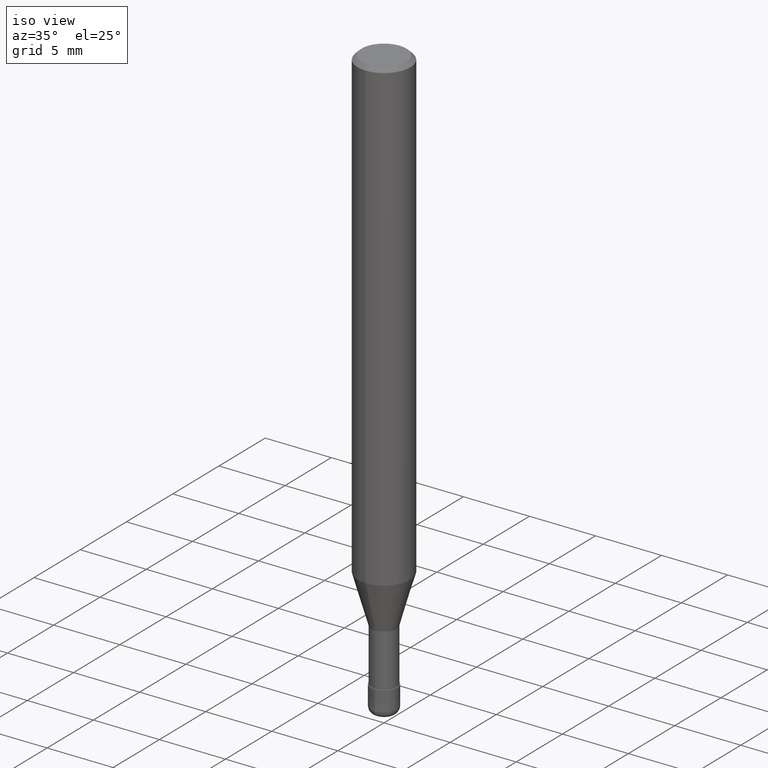
[diagram: clean part render]
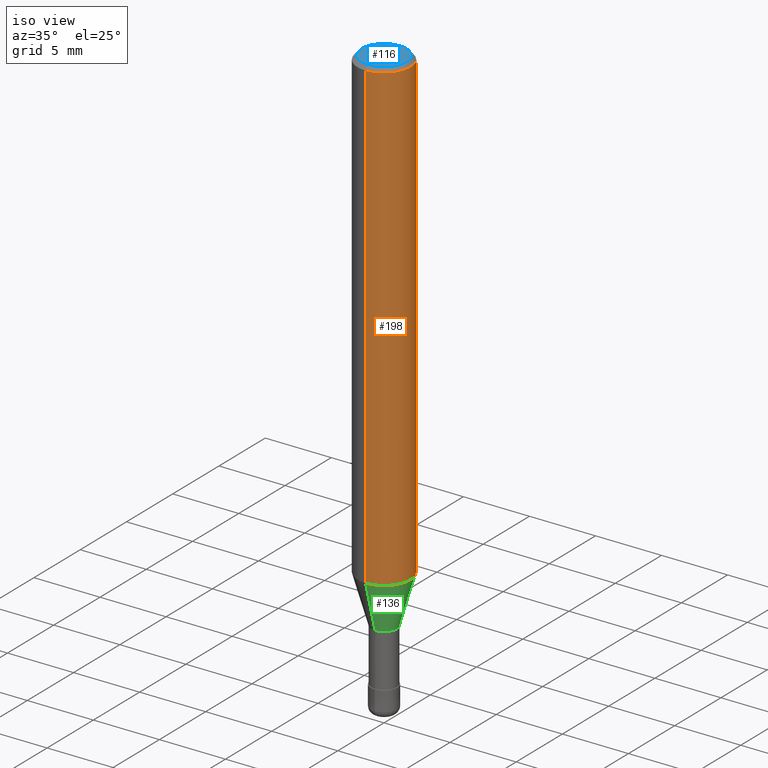
[diagram: same view with three faces highlighted in distinct colors, each labeled with its STEP entity id]
A machine part, iso view with three faces highlighted in distinct colors.
Their STEP definitions:

[orange] entity #198 — the highlighted cylindrical surface (edge-blend (fillet) strip) has radius 2 mm, axis along (-0, -0, 1).
#110=EDGE_CURVE('',#172,#196,#263,.T.);
#114=EDGE_CURVE('',#222,#196,#267,.T.);
#138=EDGE_CURVE('',#186,#172,#295,.T.);
#164=EDGE_CURVE('',#222,#186,#325,.T.);
#172=VERTEX_POINT('',#335);
#186=VERTEX_POINT('',#351);
#196=VERTEX_POINT('',#361);
#198=ADVANCED_FACE('',(#363),#364,.T.);
#222=VERTEX_POINT('',#391);
#263=LINE('',#430,#431);
#267=CIRCLE('',#436,2.0);
#295=CIRCLE('',#469,2.0);
#325=LINE('',#508,#509);
#335=CARTESIAN_POINT('',(2.44921270764475E-016,-2.0,-35.356));
#351=CARTESIAN_POINT('',(0.0,2.0,-35.356));
#361=CARTESIAN_POINT('',(2.44921270764475E-016,-2.0,-0.299999999999997));
#363=FACE_OUTER_BOUND('',#551,.T.);
#364=CYLINDRICAL_SURFACE('',#552,2.0);
#391=CARTESIAN_POINT('',(0.0,2.0,-0.299999999999997));
#430=CARTESIAN_POINT('',(2.44921270764475E-016,-2.0,-17.828));
#431=VECTOR('',#614,1.0);
#436=AXIS2_PLACEMENT_3D('',#615,#616,#617);
#469=AXIS2_PLACEMENT_3D('',#651,#652,#653);
#508=CARTESIAN_POINT('',(-2.44921270764475E-016,2.0,-17.828));
#509=VECTOR('',#704,1.0);
#551=EDGE_LOOP('',(#748,#749,#750,#751));
#552=AXIS2_PLACEMENT_3D('',#752,#753,#754);
#614=DIRECTION('',(-0.0,-0.0,1.0));
#615=CARTESIAN_POINT('',(0.0,0.0,-0.299999999999997));
#616=DIRECTION('',(0.0,0.0,-1.0));
#617=DIRECTION('',(0.0,1.0,0.0));
#651=CARTESIAN_POINT('',(0.0,0.0,-35.356));
#652=DIRECTION('',(0.0,0.0,-1.0));
#653=DIRECTION('',(0.0,1.0,0.0));
#704=DIRECTION('',(0.0,0.0,-1.0));
#748=ORIENTED_EDGE('',*,*,#164,.F.);
#749=ORIENTED_EDGE('',*,*,#114,.T.);
#750=ORIENTED_EDGE('',*,*,#110,.F.);
#751=ORIENTED_EDGE('',*,*,#138,.F.);
#752=CARTESIAN_POINT('',(0.0,0.0,-17.828));
#753=DIRECTION('',(-0.0,-0.0,1.0));
#754=DIRECTION('',(0.0,1.0,0.0));

[blue] entity #116 — the highlighted planar face has unit normal (-0, 0, 1).
#102=EDGE_CURVE('',#118,#176,#255,.T.);
#116=ADVANCED_FACE('',(#269),#270,.T.);
#118=VERTEX_POINT('',#272);
#176=VERTEX_POINT('',#339);
#220=EDGE_CURVE('',#176,#118,#389,.T.);
#255=CIRCLE('',#418,1.7);
#269=FACE_OUTER_BOUND('',#438,.T.);
#270=PLANE('',#439);
#272=CARTESIAN_POINT('',(0.0,1.7,0.0));
#339=CARTESIAN_POINT('',(2.08183080149804E-016,-1.7,0.0));
#389=CIRCLE('',#586,1.7);
#418=AXIS2_PLACEMENT_3D('',#607,#608,#609);
#438=EDGE_LOOP('',(#619,#620));
#439=AXIS2_PLACEMENT_3D('',#621,#622,#623);
#586=AXIS2_PLACEMENT_3D('',#788,#789,#790);
#607=CARTESIAN_POINT('',(0.0,0.0,0.0));
#608=DIRECTION('',(0.0,0.0,-1.0));
#609=DIRECTION('',(0.0,1.0,0.0));
#619=ORIENTED_EDGE('',*,*,#102,.F.);
#620=ORIENTED_EDGE('',*,*,#220,.F.);
#621=CARTESIAN_POINT('',(0.0,0.85,0.0));
#622=DIRECTION('',(-0.0,0.0,1.0));
#623=DIRECTION('',(0.0,-1.0,0.0));
#788=CARTESIAN_POINT('',(0.0,0.0,0.0));
#789=DIRECTION('',(0.0,0.0,-1.0));
#790=DIRECTION('',(0.0,1.0,0.0));

[green] entity #136 — the highlighted conical surface has half-angle 16.001 deg.
#126=EDGE_CURVE('',#174,#232,#281,.T.);
#134=EDGE_CURVE('',#194,#232,#290,.T.);
#136=ADVANCED_FACE('',(#292),#293,.T.);
#162=EDGE_CURVE('',#166,#174,#323,.T.);
#166=VERTEX_POINT('',#327);
#174=VERTEX_POINT('',#337);
#194=VERTEX_POINT('',#359);
#208=EDGE_CURVE('',#194,#166,#374,.T.);
#232=VERTEX_POINT('',#403);
#281=LINE('',#451,#452);
#290=CIRCLE('',#463,1.99995);
#292=FACE_OUTER_BOUND('',#465,.T.);
#293=CONICAL_SURFACE('',#466,1.47745,0.279277990456152);
#323=CIRCLE('',#505,0.95495);
#327=CARTESIAN_POINT('',(0.0,0.95495,-39.0));
#337=CARTESIAN_POINT('',(1.16943783758268E-016,-0.95495,-39.0));
#359=CARTESIAN_POINT('',(0.0,1.99995,-35.356));
#374=LINE('',#566,#567);
#403=CARTESIAN_POINT('',(2.44915147732706E-016,-1.99995,-35.356));
#451=CARTESIAN_POINT('',(1.80929465745487E-016,-1.47745,-37.178));
#452=VECTOR('',#630,1.0);
#463=AXIS2_PLACEMENT_3D('',#640,#641,#642);
#465=EDGE_LOOP('',(#644,#645,#646,#647));
#466=AXIS2_PLACEMENT_3D('',#648,#649,#650);
#505=AXIS2_PLACEMENT_3D('',#701,#702,#703);
#566=CARTESIAN_POINT('',(-1.80929465745487E-016,1.47745,-37.178));
#567=VECTOR('',#759,1.0);
#630=DIRECTION('',(3.37577051438857E-017,-0.275661685393983,0.961254719211172));
#640=CARTESIAN_POINT('',(0.0,0.0,-35.356));
#641=DIRECTION('',(0.0,0.0,-1.0));
#642=DIRECTION('',(0.0,1.0,0.0));
#644=ORIENTED_EDGE('',*,*,#208,.F.);
#645=ORIENTED_EDGE('',*,*,#134,.T.);
#646=ORIENTED_EDGE('',*,*,#126,.F.);
#647=ORIENTED_EDGE('',*,*,#162,.F.);
#648=CARTESIAN_POINT('',(0.0,0.0,-37.178));
#649=DIRECTION('',(-0.0,-0.0,1.0));
#650=DIRECTION('',(0.0,1.0,0.0));
#701=CARTESIAN_POINT('',(0.0,0.0,-39.0));
#702=DIRECTION('',(0.0,0.0,-1.0));
#703=DIRECTION('',(0.0,1.0,0.0));
#759=DIRECTION('',(3.37577051438857E-017,-0.275661685393983,-0.961254719211172));